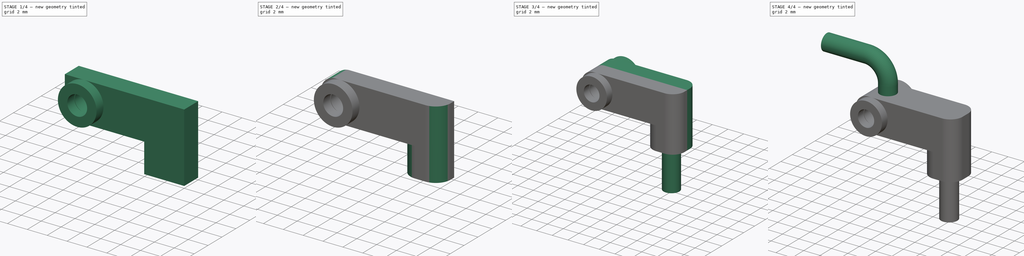
[diagram: build sequence overview — one tinted view per stage of 4, left to right]
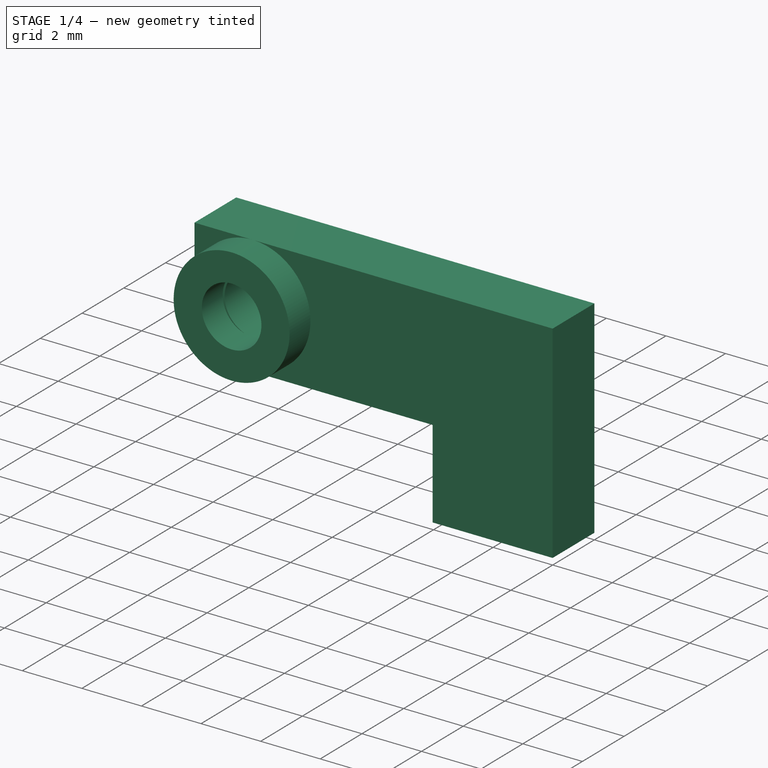
[diagram: stage 1 of 4 — iso view after this stage's code; geometry added in this stage tinted green]
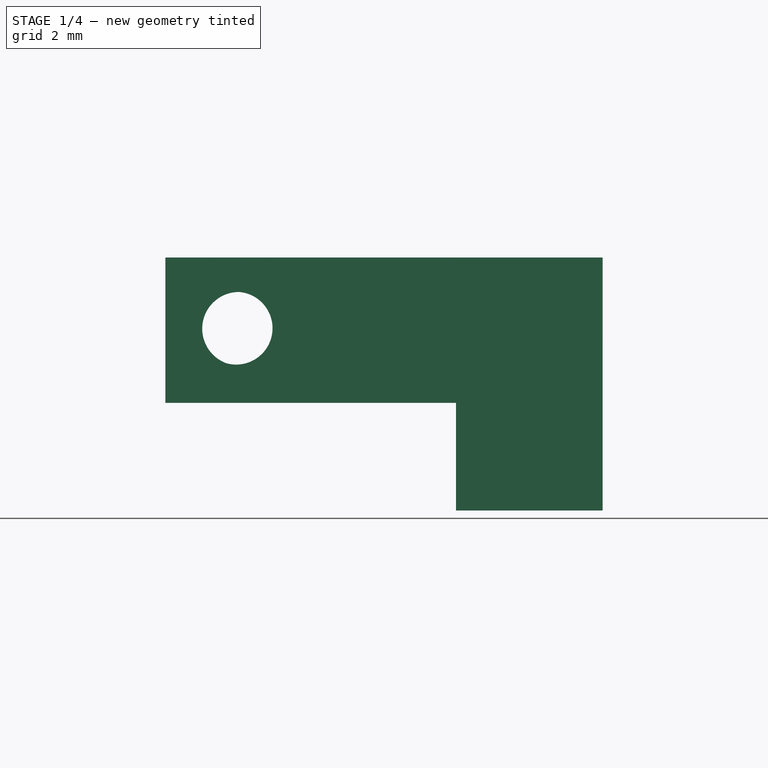
[diagram: stage 1 of 4 — front view after this stage's code; geometry added in this stage tinted green]
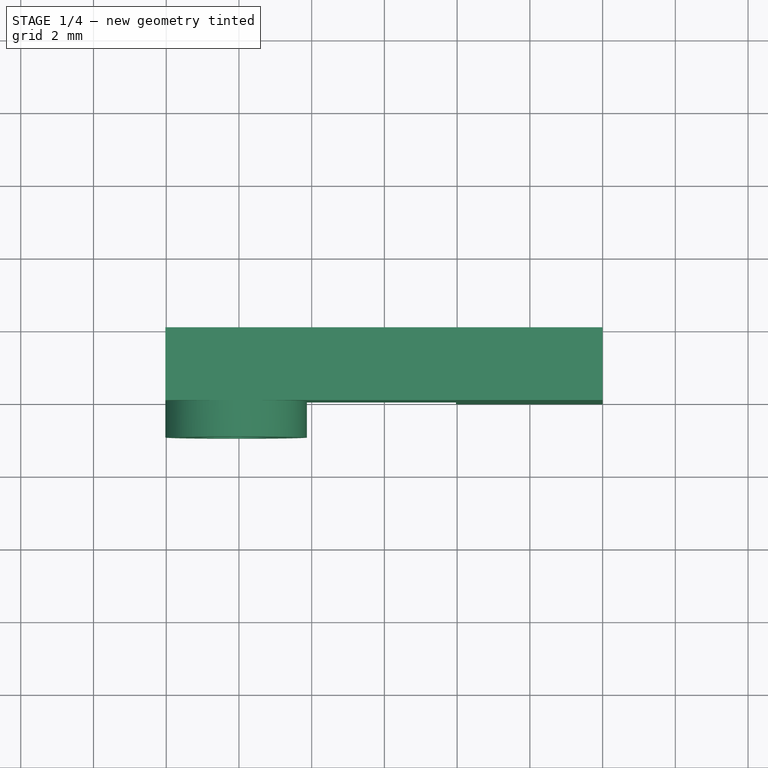
[diagram: stage 1 of 4 — top view after this stage's code; geometry added in this stage tinted green]
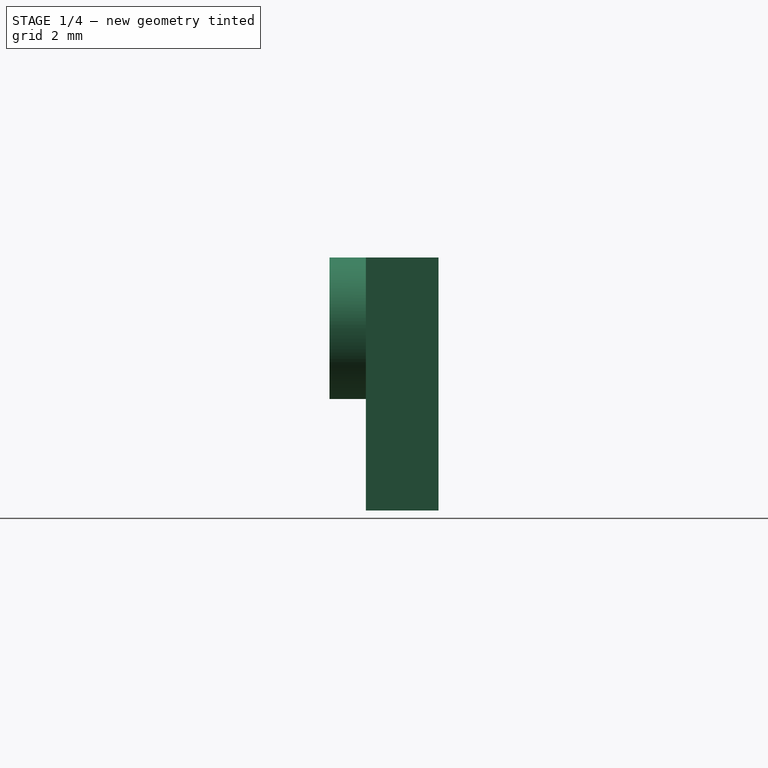
[diagram: stage 1 of 4 — right view after this stage's code; geometry added in this stage tinted green]
FCSTD DOCUMENT  (FreeCAD 0.19R24291 (Git))
Label: branch_pipe_tee0_feeder01
License: All rights reserved
LicenseURL: http://en.wikipedia.org/wiki/All_rights_reserved
objects: Sketcher::SketchObject×8, PartDesign::Pad×3, PartDesign::Fillet×2, PartDesign::Pocket×2, Spreadsheet::Sheet×1, PartDesign::Groove×1, PartDesign::Mirrored×1, PartDesign::Plane×1, PartDesign::AdditivePipe×1, PartDesign::Body×1
note: 29 computed .brp shape members not serialized (recipe doc carries the construction recipe); baked Part::Feature solids carry a one-line shape summary decoded from their .brp

FEATURE [Spreadsheet::Sheet] Spreadsheet
  cells = B3=branch ; C3=pipe ; D3= tee; D5=all; B6=shoulder; C6(br_sh)=8; B7=height; C7(br_h)=5; B8=Tpipe05; C8(t_hg)=1; B9=R branch; C9(br_r)=2; D9(br_d)=4; B10=T hole; C10(t_hole)=1; B11=hole; C11(hole)=0.5; B12=r plug; C12(r_plug)=1; B13=plug; C13(h_plg)=0.5; C14(plug)=5
FEATURE [Sketcher::SketchObject] Sketch
  FullyConstrained = false
  MapMode = 5
  Placement = pos=(0,0,0) rot=(1,0,0;1.5708rad)
  Support = -> [XZ_Plane]
  expr: Constraints[15] = Spreadsheet.br_h
  expr: Constraints[16] = Spreadsheet.br_h
  expr: Constraints[17] = Spreadsheet.br_r
  expr: Constraints[18] = Spreadsheet.br_sh
  expr: Constraints[19] = Spreadsheet.br_d
  sketch-geometry (8):
    g0: LineSegment StartX=-2.03016 StartY=0 StartZ=0 EndX=2 EndY=0 EndZ=0
    g1: LineSegment StartX=2 StartY=0 StartZ=0 EndX=2 EndY=5 EndZ=0
    g2: LineSegment StartX=-2.03016 StartY=2.95892 StartZ=0 EndX=-2.03016 EndY=0 EndZ=0
    g3: LineSegment StartX=-2.03016 StartY=2.95892 StartZ=0 EndX=-10.0223 EndY=2.95892 EndZ=0
    g4: LineSegment StartX=-10.0223 StartY=2.95892 StartZ=0 EndX=-10.0223 EndY=6.95892 EndZ=0
    g5: LineSegment StartX=-10.0223 StartY=6.95892 StartZ=0 EndX=2 EndY=6.95892 EndZ=0
    g6: LineSegment StartX=2 StartY=6.95892 StartZ=0 EndX=2 EndY=5 EndZ=0
    g7: Circle CenterX=-8 CenterY=5 CenterZ=0 NormalX=0 NormalY=0 NormalZ=1 AngleXU=0 Radius=1.00997
  constraints (20):
    c: Coincident(g0,g1)
    c: Coincident(g2,g0)
    c: Horizontal(g0)
    c: Vertical(g1)
    c: Vertical(g2)
    c: PointOnObject(g0,g-1)
    c: Horizontal(g3)
    c: Coincident(g3,g4)
    c: Vertical(g4)
    c: Coincident(g4,g5)
    c: Horizontal(g5)
    c: Coincident(g6,g5)
    c: Coincident(g6,g1)
    c: Vertical(g6)
    c: Coincident(g2,g3)
    c: Distance(g0,g1) = 5
    c: Distance(g7,g-1) = 5
    c: Distance(g1,g-2) = 2
    c: Distance(g7,g-2) = 8
    c: DistanceY(g4,g4) = 4
FEATURE [PartDesign::Pad] Pad
  Direction = (1,1,1)
  Length = 2
  Length2 = 100
  Placement = pos=(0,0,0) rot=(1,0,0;1.5708rad)
  Profile = -> Sketch
  Type = 0
  expr: Length = Spreadsheet.br_r
FEATURE [Sketcher::SketchObject] Sketch002
  ExternalGeometry = -> [Pad]
  FullyConstrained = false
  MapMode = 5
  Placement = pos=(0,-2,0) rot=(1,0,0;1.5708rad)
  Support = -> [Pad]
  expr: Constraints[0] = Spreadsheet.t_hole
  sketch-geometry (2):
    g0: Circle CenterX=-8.07647 CenterY=5.0131 CenterZ=0 NormalX=0 NormalY=0 NormalZ=1 AngleXU=0 Radius=1
    g1: Circle CenterX=-8.07647 CenterY=5.0131 CenterZ=0 NormalX=0 NormalY=0 NormalZ=1 AngleXU=0 Radius=1.94582
  constraints (4):
    c: Radius(g0) = 1
    c: Coincident(g1,g0)
    c: Tangent(g1,g-3)
    c: Tangent(g1,g-4)
FEATURE [PartDesign::Pad] Pad001
  BaseFeature = -> Pad
  Direction = (1,1,1)
  Length = 1
  Length2 = 100
  Placement = pos=(0,0,0) rot=(1,0,0;1.5708rad)
  Profile = -> Sketch002
  Type = 0
  expr: Length = Spreadsheet.t_hg
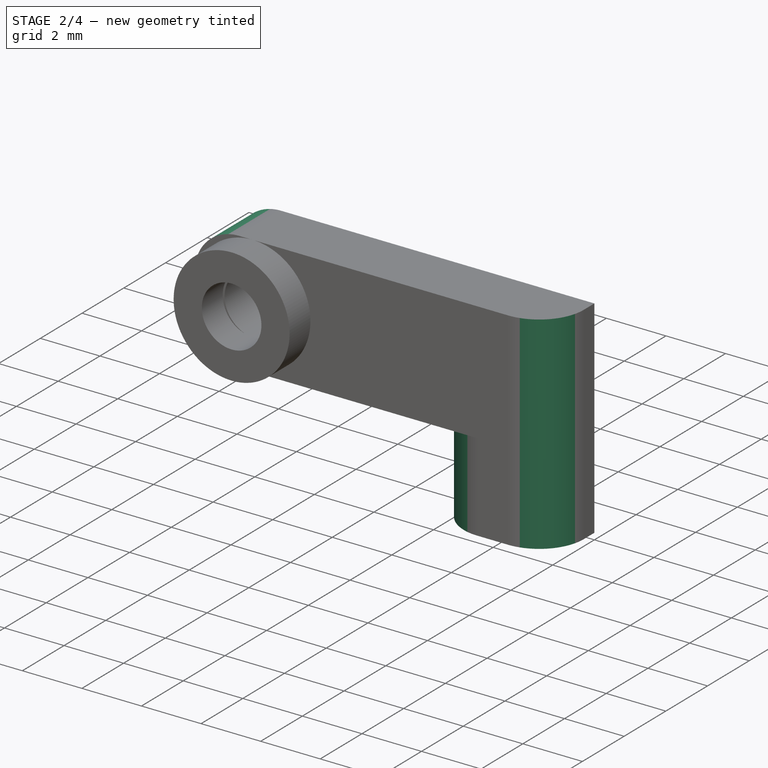
[diagram: stage 2 of 4 — iso view after this stage's code; geometry added in this stage tinted green]
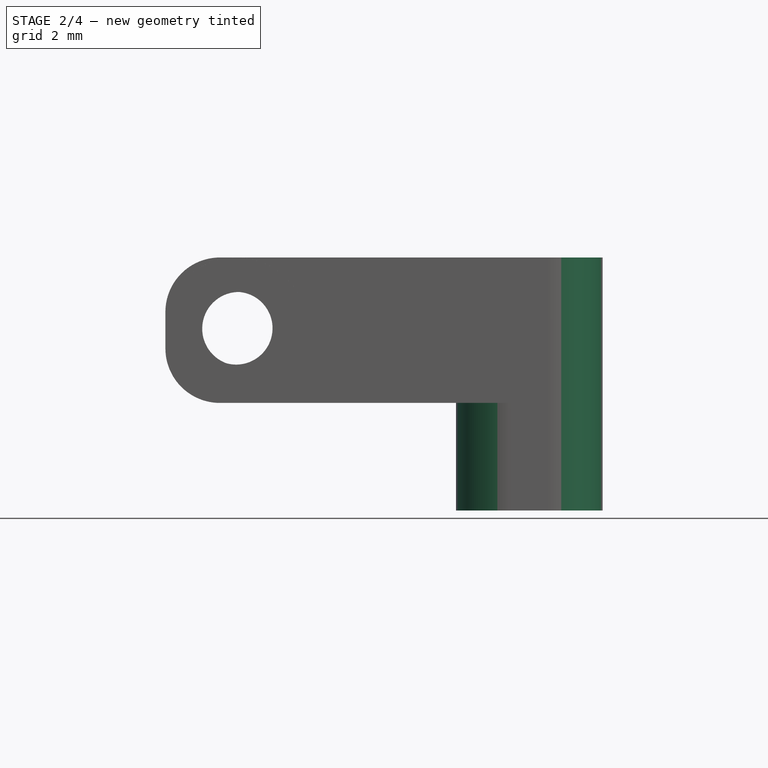
[diagram: stage 2 of 4 — front view after this stage's code; geometry added in this stage tinted green]
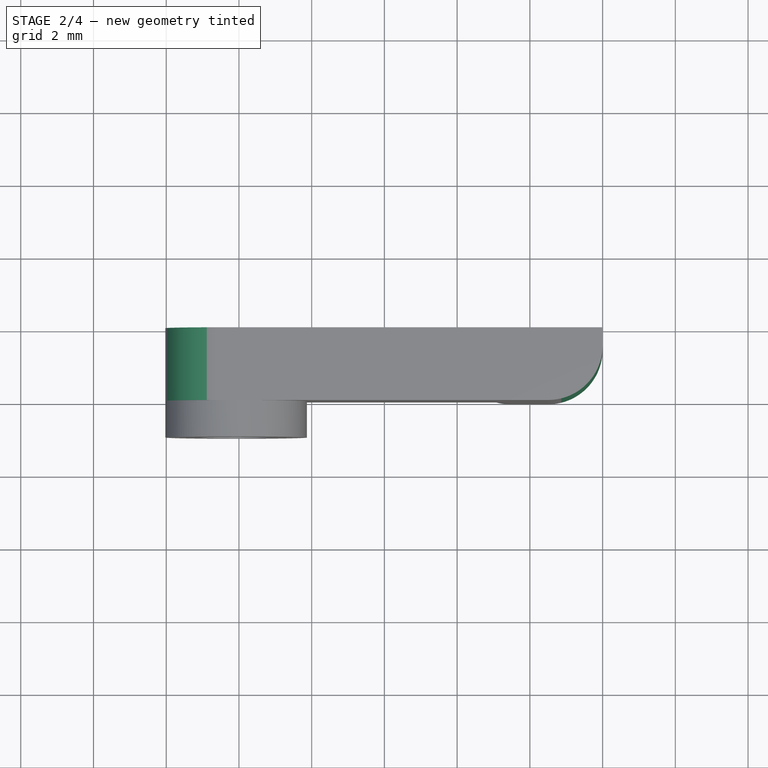
[diagram: stage 2 of 4 — top view after this stage's code; geometry added in this stage tinted green]
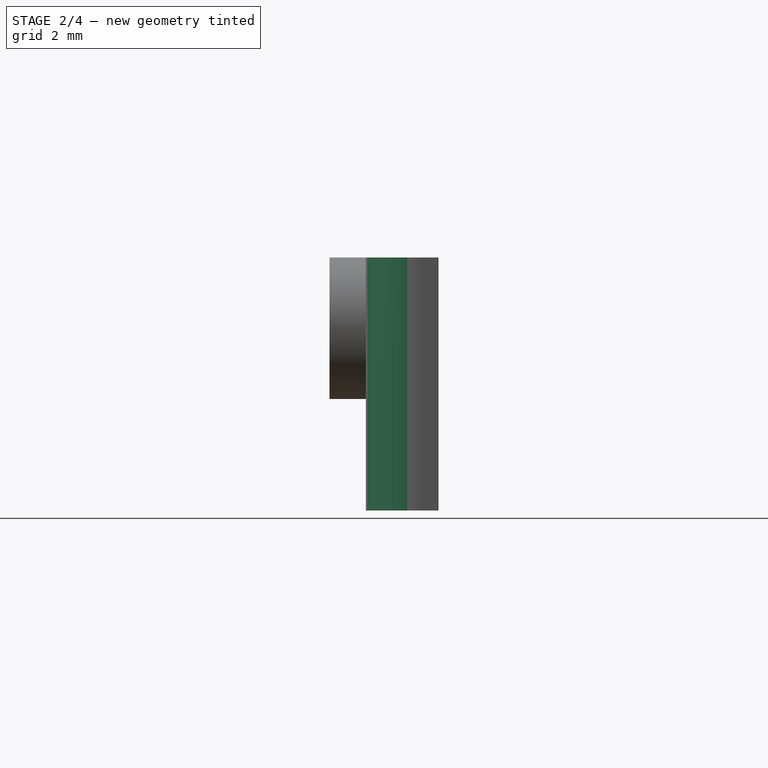
[diagram: stage 2 of 4 — right view after this stage's code; geometry added in this stage tinted green]
FEATURE [PartDesign::Fillet] Fillet
  Base = -> Pad001 [Edge24,Edge22]
  BaseFeature = -> Pad001
  Placement = pos=(0,0,0) rot=(1,0,0;1.5708rad)
  Radius = 1.5
  SupportTransform = false
FEATURE [PartDesign::Fillet] Fillet001
  Base = -> Fillet [Edge30,Edge23]
  BaseFeature = -> Fillet
  Placement = pos=(0,0,0) rot=(1,0,0;1.5708rad)
  Radius = 1.5
  SupportTransform = false
FEATURE [Sketcher::SketchObject] Sketch003
  FullyConstrained = false
  MapMode = 5
  Placement = pos=(0,0,0) rot=(-1,0,0;1.5708rad)
  Support = -> [Fillet001]
  expr: Constraints[9] = Spreadsheet.hole
  sketch-geometry (4):
    g0: LineSegment StartX=0 StartY=0 StartZ=0 EndX=0.5 EndY=0 EndZ=0
    g1: LineSegment StartX=0.5 StartY=0 StartZ=0 EndX=0.5 EndY=-5.97304 EndZ=0
    g2: LineSegment StartX=0.5 StartY=-5.97304 StartZ=0 EndX=0 EndY=-5.97304 EndZ=0
    g3: LineSegment StartX=0 StartY=-5.97304 StartZ=0 EndX=0 EndY=0 EndZ=0
  constraints (10):
    c: Coincident(g0,g1)
    c: Coincident(g1,g2)
    c: Coincident(g2,g3)
    c: Coincident(g3,g0)
    c: Horizontal(g0)
    c: Horizontal(g2)
    c: Vertical(g1)
    c: Vertical(g3)
    c: Coincident(g0,g-1)
    c: DistanceX(g0,g0) = 0.5
FEATURE [PartDesign::Groove] Groove
  Angle = 360
  Axis = (0,2e-16,-1)
  Base = (0,0,0)
  BaseFeature = -> Fillet001
  Placement = pos=(0,0,0) rot=(1,0,0;1.5708rad)
  Profile = -> Sketch003
  ReferenceAxis = -> Sketch003 [V_Axis]
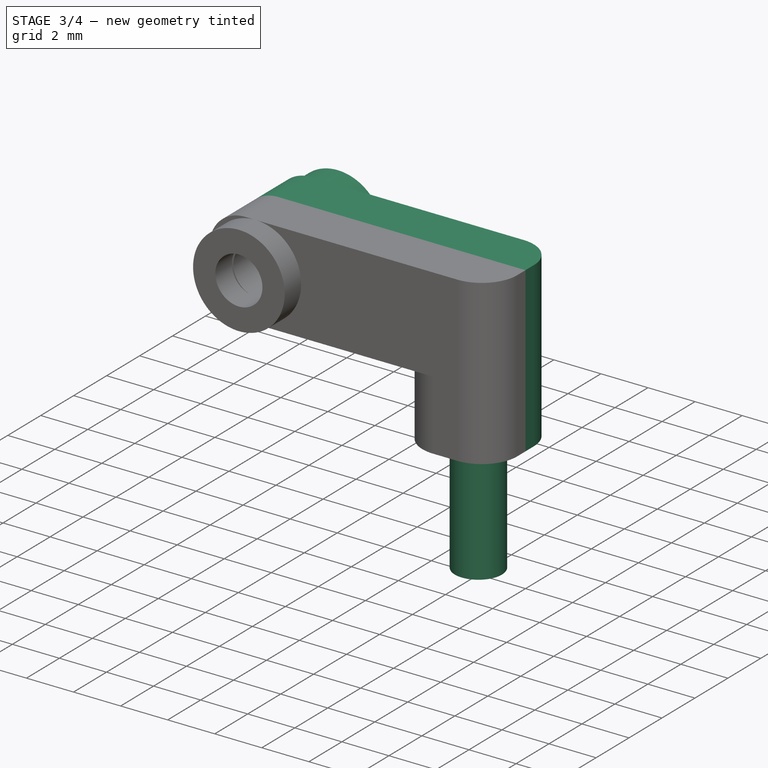
[diagram: stage 3 of 4 — iso view after this stage's code; geometry added in this stage tinted green]
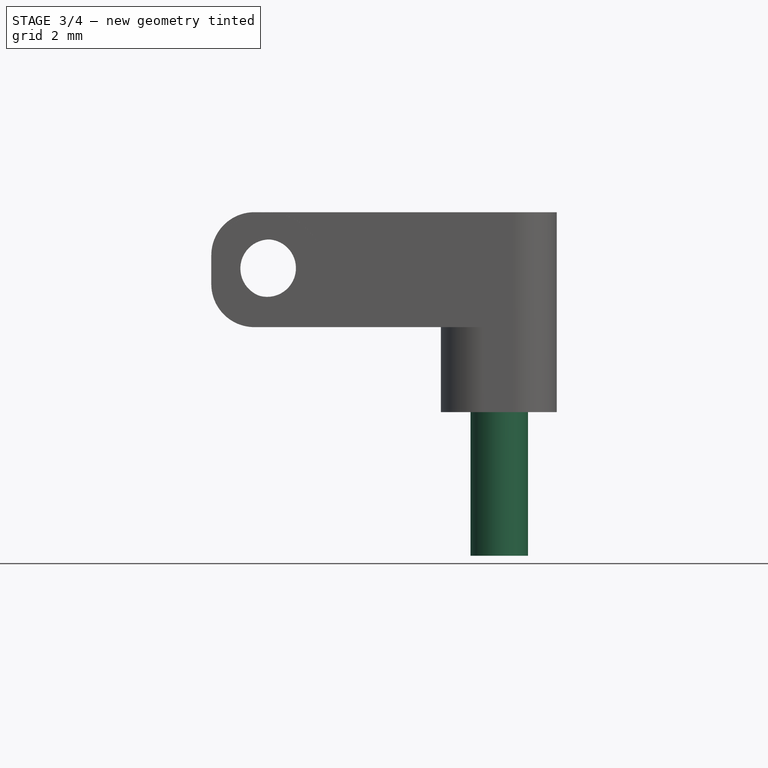
[diagram: stage 3 of 4 — front view after this stage's code; geometry added in this stage tinted green]
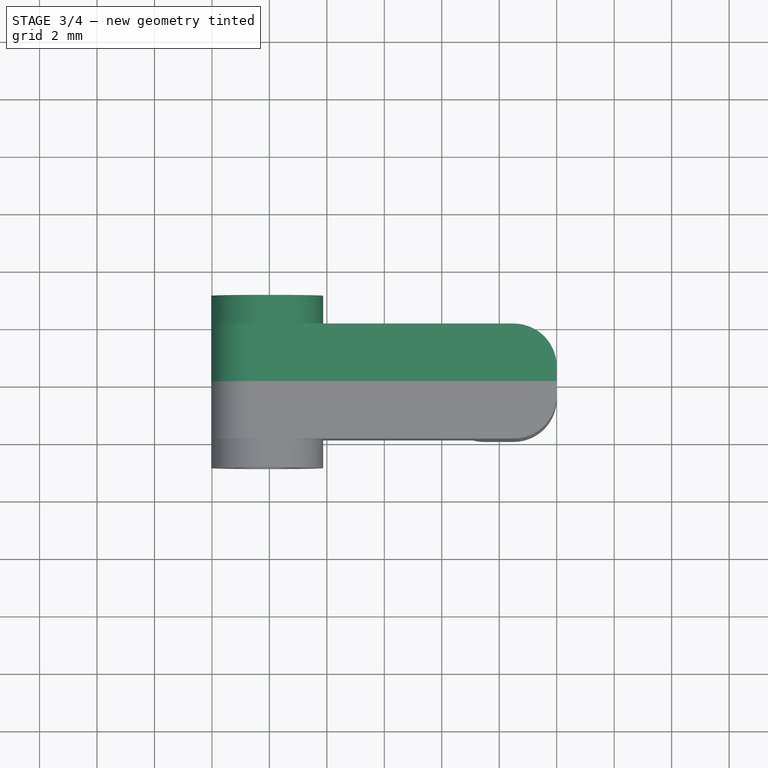
[diagram: stage 3 of 4 — top view after this stage's code; geometry added in this stage tinted green]
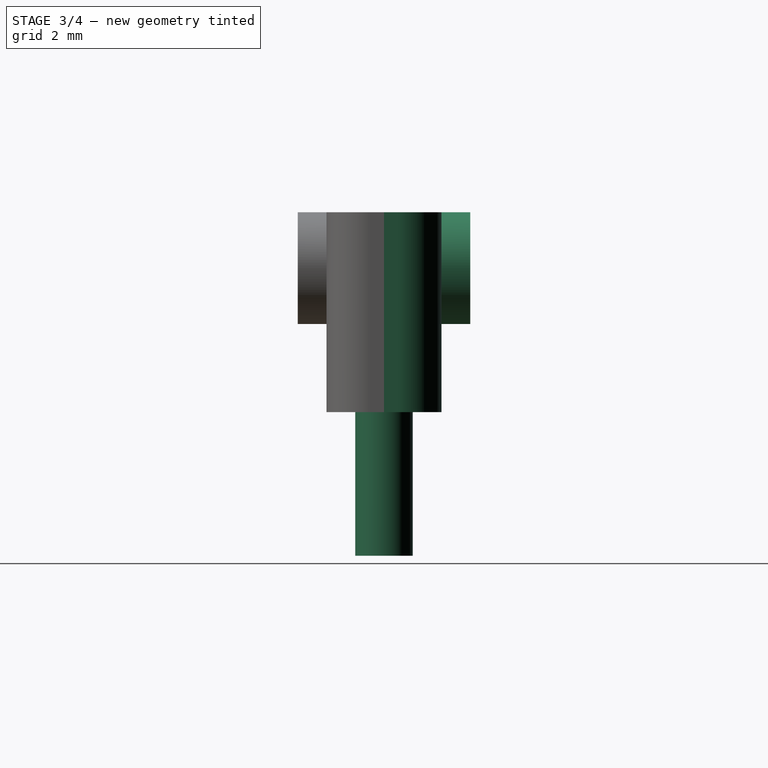
[diagram: stage 3 of 4 — right view after this stage's code; geometry added in this stage tinted green]
FEATURE [Sketcher::SketchObject] Sketch004
  FullyConstrained = false
  MapMode = 5
  Placement = pos=(0,0,0) rot=(-1,0,0;1.5708rad)
  Support = -> [Groove]
  sketch-geometry (4):
    g0: LineSegment StartX=0 StartY=-4.02456 StartZ=0 EndX=-7.97652 EndY=-4.02456 EndZ=0
    g1: LineSegment StartX=-7.97652 StartY=-4.02456 StartZ=0 EndX=-7.97652 EndY=-6.02616 EndZ=0
    g2: LineSegment StartX=-7.97652 StartY=-6.02616 StartZ=0 EndX=0 EndY=-6.02616 EndZ=0
    g3: LineSegment StartX=0 StartY=-6.02616 StartZ=0 EndX=0 EndY=-4.02456 EndZ=0
  constraints (9):
    c: Coincident(g0,g1)
    c: Coincident(g1,g2)
    c: Coincident(g2,g3)
    c: Coincident(g3,g0)
    c: Horizontal(g0)
    c: Horizontal(g2)
    c: Vertical(g1)
    c: Vertical(g3)
    c: PointOnObject(g0,g-2)
FEATURE [PartDesign::Pocket] Pocket
  BaseFeature = -> Groove
  Length = 1
  Length2 = 100
  Placement = pos=(0,0,0) rot=(1,0,0;1.5708rad)
  Profile = -> Sketch004
  Type = 0
FEATURE [PartDesign::Mirrored] Mirrored
  BaseFeature = -> Pocket
  MirrorPlane = -> XZ_Plane
  Originals = -> [Pad,Pad001,Fillet,Fillet001,Groove,Pocket]
  Placement = pos=(0,0,0) rot=(1,0,0;1.5708rad)
FEATURE [Sketcher::SketchObject] Sketch005
  FullyConstrained = true
  MapMode = 5
  Placement = pos=(0,0,0) rot=(1,0,0;3.14159rad)
  Support = -> [Mirrored]
  expr: Constraints[2] = Spreadsheet.r_plug
  expr: Constraints[3] = Spreadsheet.h_plg
  sketch-geometry (2):
    g0: Circle CenterX=0 CenterY=0 CenterZ=0 NormalX=0 NormalY=0 NormalZ=1 AngleXU=0 Radius=0.5
    g1: Circle CenterX=0 CenterY=0 CenterZ=0 NormalX=0 NormalY=0 NormalZ=1 AngleXU=0 Radius=1
  constraints (4):
    c: Coincident(g0,g-1)
    c: Coincident(g1,g0)
    c: Radius(g1) = 1
    c: Radius(g0) = 0.5
FEATURE [PartDesign::Pad] Pad002
  BaseFeature = -> Mirrored
  Direction = (1,1,1)
  Length = 5
  Length2 = 100
  Placement = pos=(0,0,0) rot=(1,0,0;1.5708rad)
  Profile = -> Sketch005
  Type = 0
  expr: Length = Spreadsheet.plug
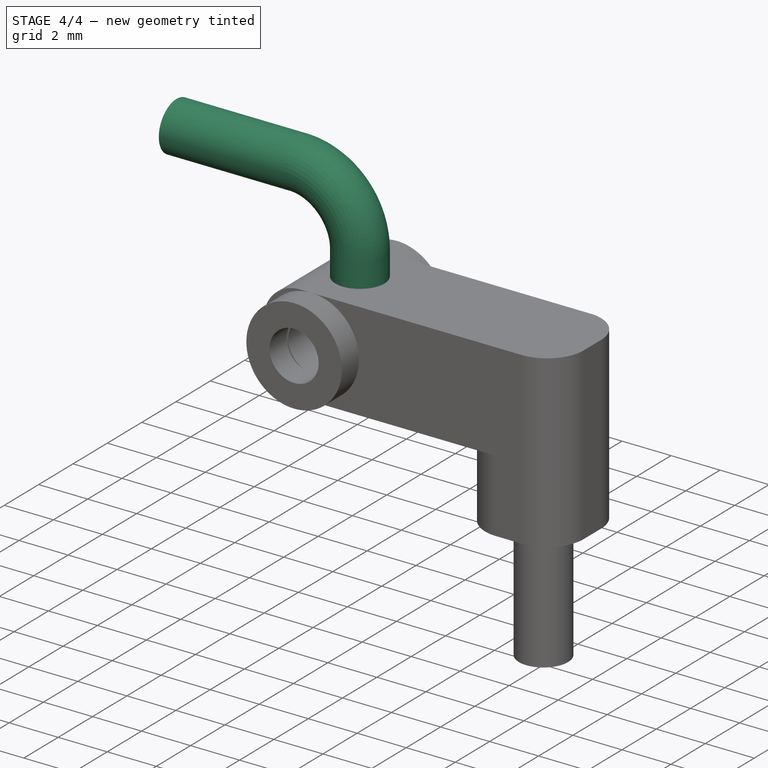
[diagram: stage 4 of 4 — iso view after this stage's code; geometry added in this stage tinted green]
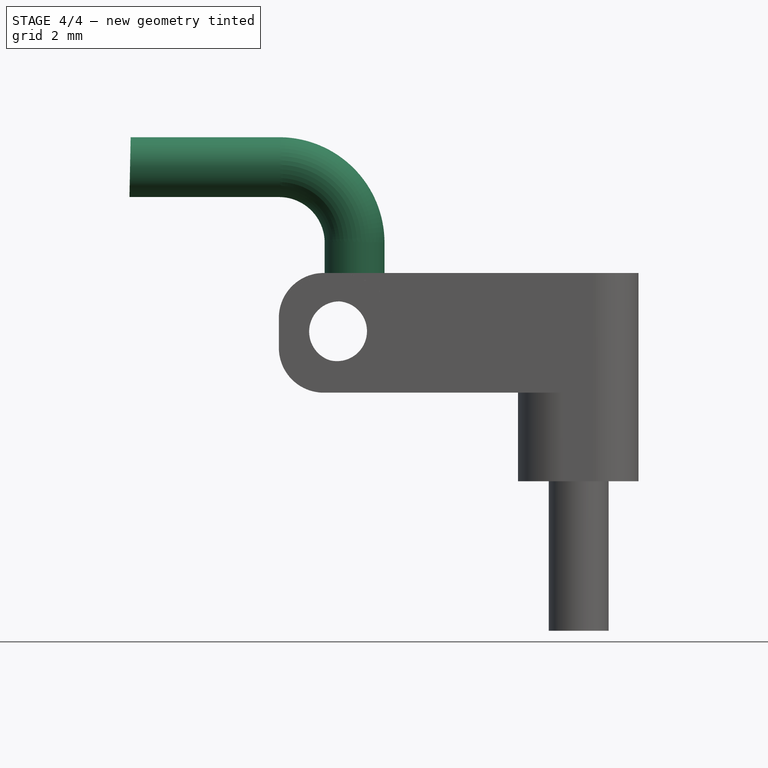
[diagram: stage 4 of 4 — front view after this stage's code; geometry added in this stage tinted green]
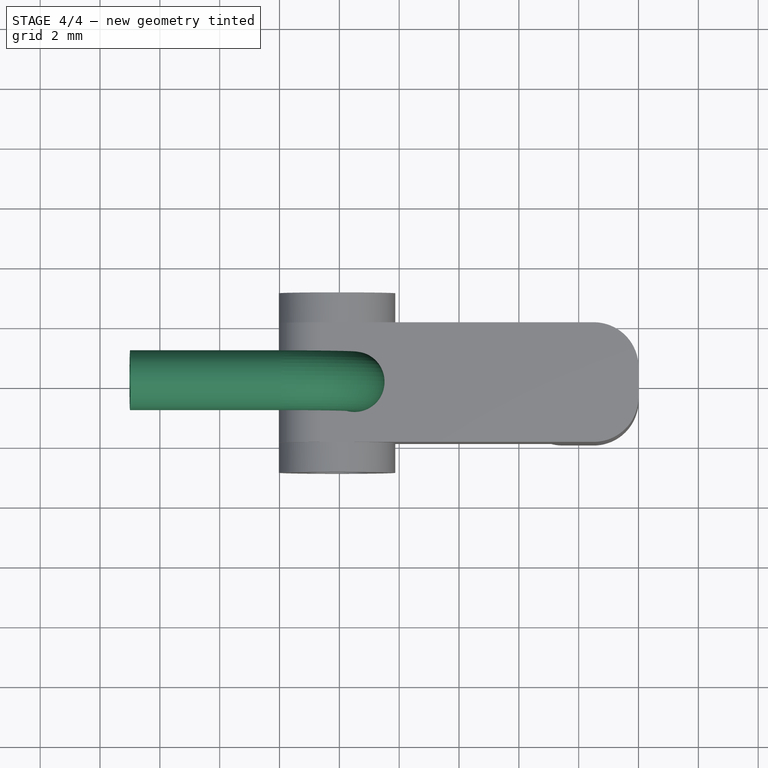
[diagram: stage 4 of 4 — top view after this stage's code; geometry added in this stage tinted green]
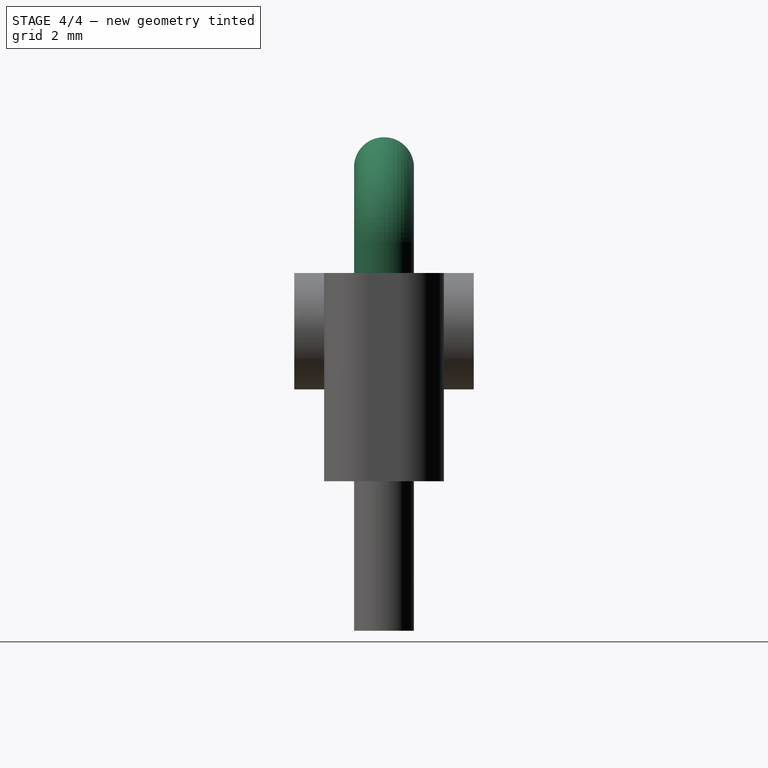
[diagram: stage 4 of 4 — right view after this stage's code; geometry added in this stage tinted green]
FEATURE [Sketcher::SketchObject] Sketch006
  FullyConstrained = false
  MapMode = 5
  Placement = pos=(0,1.5e-15,6.95892) rot=(0,0,1;3.14159rad)
  Support = -> [Pad002]
  sketch-geometry (1):
    g0: Circle CenterX=7.49105 CenterY=0 CenterZ=0 NormalX=0 NormalY=0 NormalZ=1 AngleXU=0 Radius=0.511509
  constraints (1):
    c: PointOnObject(g0,g-1)
FEATURE [PartDesign::Pocket] Pocket001
  BaseFeature = -> Pad002
  Length = 1
  Length2 = 100
  Placement = pos=(0,0,0) rot=(1,0,0;1.5708rad)
  Profile = -> Sketch006
  Type = 0
FEATURE [PartDesign::Plane] DatumPlane
  Length = 30
  MapMode = 5
  Placement = pos=(0,1.5e-15,6.95892) rot=(0,0,1;3.14159rad)
  ResizeMode = 1
  Support = -> [Pocket001]
  Width = 30
FEATURE [Sketcher::SketchObject] Sketch007
  ExternalGeometry = -> [Pocket001]
  FullyConstrained = true
  MapMode = 5
  Placement = pos=(0,1.5e-15,6.95892) rot=(0,0,1;3.14159rad)
  Support = -> [DatumPlane]
  sketch-geometry (2):
    g0: Circle CenterX=7.49105 CenterY=0 CenterZ=0 NormalX=0 NormalY=0 NormalZ=1 AngleXU=0 Radius=1
    g1: Circle CenterX=7.49105 CenterY=0 CenterZ=0 NormalX=0 NormalY=0 NormalZ=1 AngleXU=0 Radius=0.5
  constraints (4):
    c: Coincident(g0,g-3)
    c: Coincident(g1,g0)
    c: Radius(g1) = 0.5
    c: Radius(g0) = 1
FEATURE [Sketcher::SketchObject] Sketch008
  FullyConstrained = false
  MapMode = 5
  Placement = pos=(0,0,0) rot=(1,0,0;1.5708rad)
  Support = -> [XZ_Plane]
  sketch-geometry (3):
    g0: LineSegment StartX=-8.00968 StartY=6.95741 StartZ=0 EndX=-8.00968 EndY=7.9899 EndZ=0
    g1: ArcOfCircle CenterX=-10.0183 CenterY=7.97087 CenterZ=0 NormalX=0 NormalY=0 NormalZ=1 AngleXU=0 Radius=2.00866 StartAngle=0.00947299 EndAngle=1.56099
    g2: LineSegment StartX=-9.99856 StartY=9.97944 StartZ=0 EndX=-15.006 EndY=9.97944 EndZ=0
  constraints (4):
    c: Vertical(g0)
    c: Coincident(g1,g0)
    c: Coincident(g2,g1)
    c: Horizontal(g2)
FEATURE [PartDesign::AdditivePipe] AdditivePipe
  AuxilleryCurvelinear = true
  AuxillerySpineTangent = false
  BaseFeature = -> Pocket001
  Binormal = (0,0,0)
  Mode = 0
  Placement = pos=(0,0,0) rot=(1,0,0;1.5708rad)
  Profile = -> Sketch007
  Spine = -> Sketch008 [Edge1,Edge2,Edge3]
  SpineTangent = false
  Transformation = 0
  Transition = 0
FEATURE [PartDesign::Body] Body
  Group = -> [Sketch,Pad,Sketch002,Pad001,Fillet,Fillet001,Sketch003,Groove,Sketch004,Pocket,Mirrored,Sketch005,Pad002,Sketch006,Pocket001,DatumPlane,Sketch007,Sketch008,AdditivePipe]
  Origin = -> Origin
  Tip = -> AdditivePipe
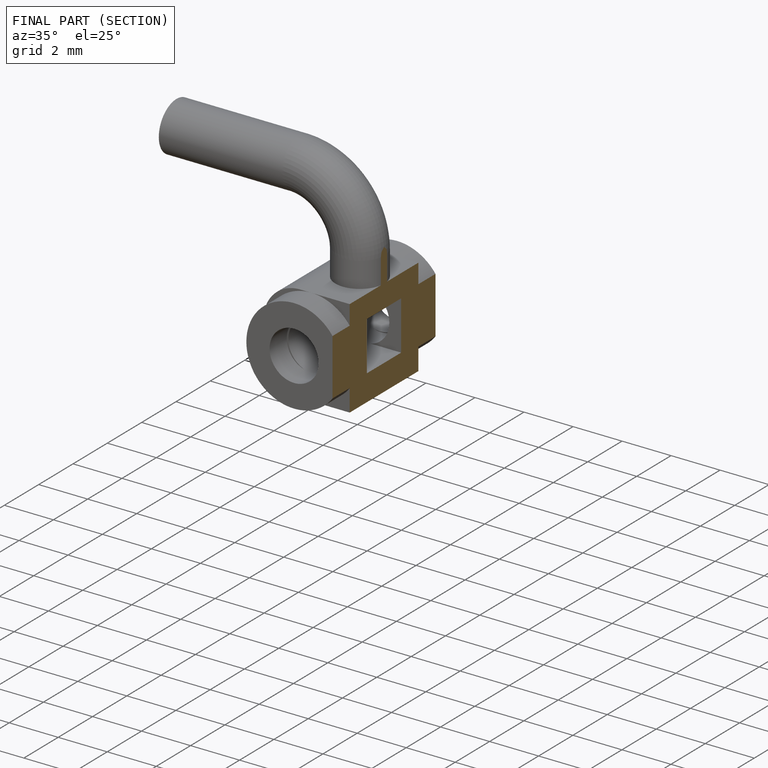
[diagram: finished part — half-section view (interior)]
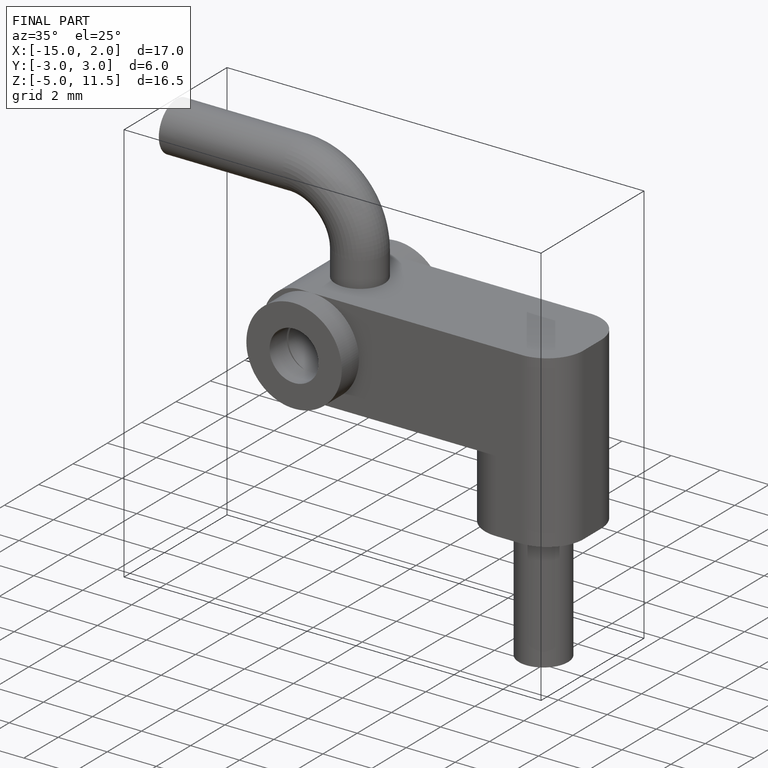
[diagram: finished part — iso view with bounding-box wireframe]
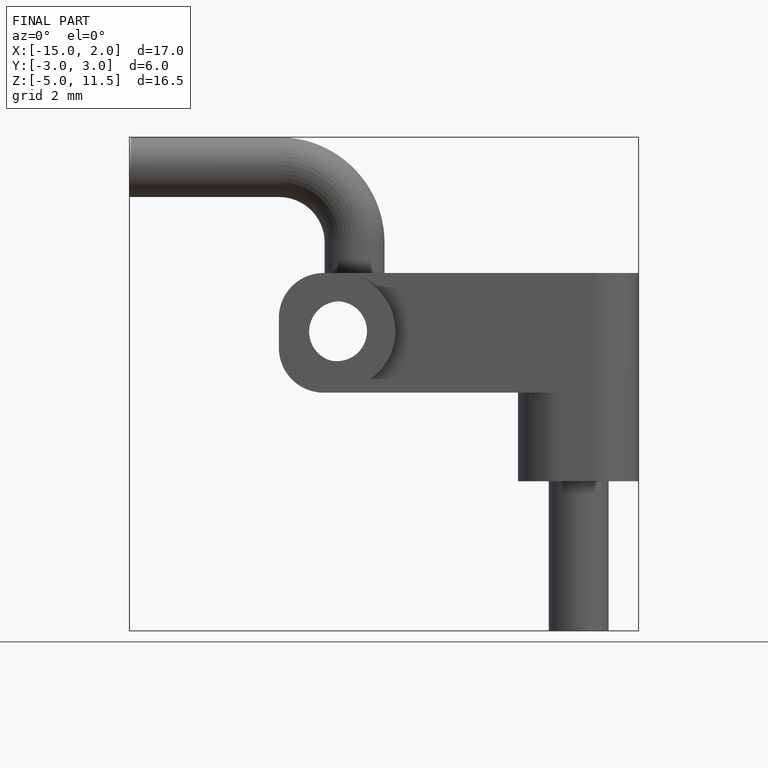
[diagram: finished part — front view with bounding-box wireframe]
